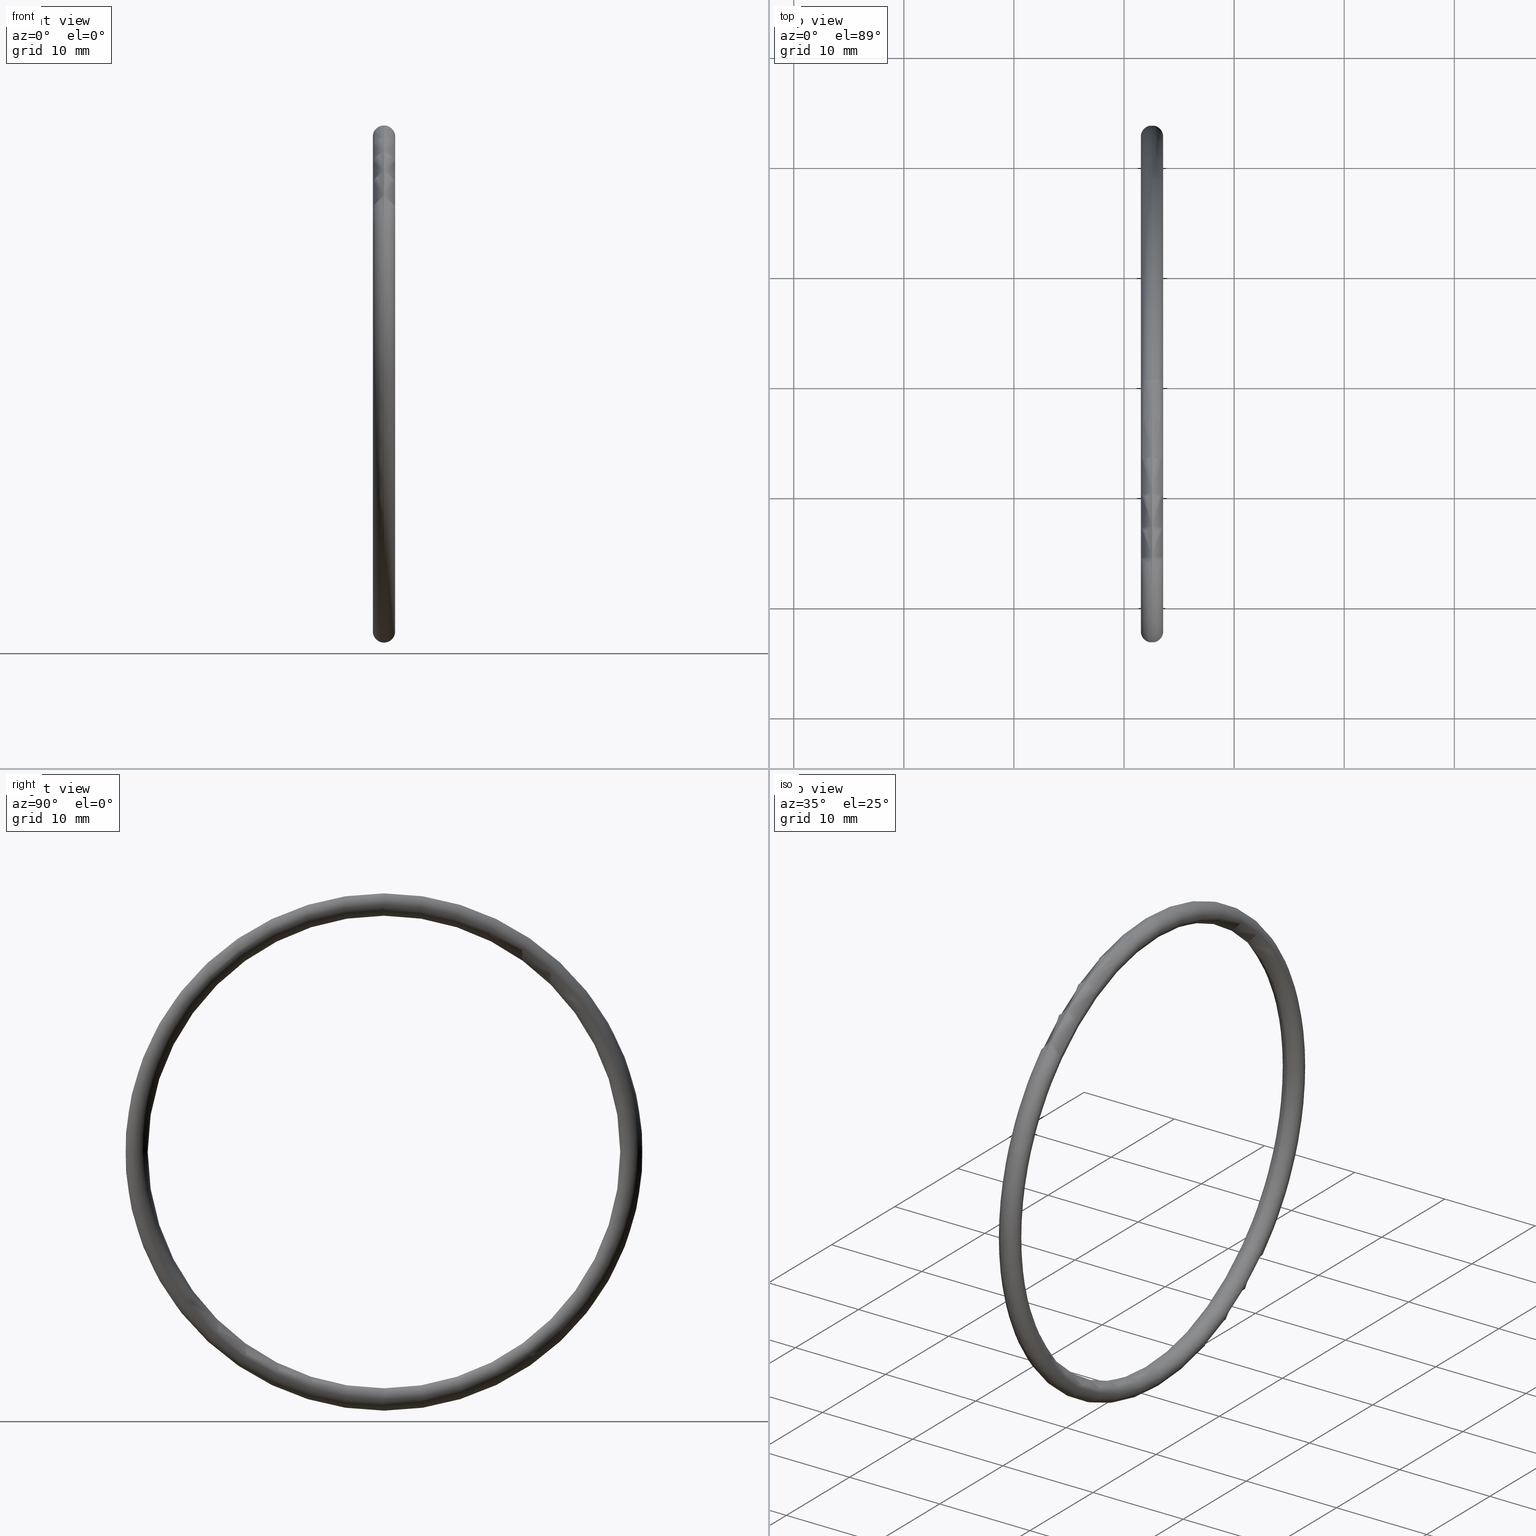
[diagram: canonical four-view strip — front | top / right | iso, engineering-drawing reading convention]
A machine part, canonical four-view strip (front | top / right | iso — engineering-drawing reading convention). The complete STEP part file that produces these views, byte-faithful:
ISO-10303-21;
HEADER;
FILE_DESCRIPTION (( 'STEP AP203' ),
    '1' );
FILE_NAME ('OM-50-SI.STEP',
    '2006-03-03T08:04:51',
    ( 'bay06' ),
    ( '' ),
    'SwSTEP 2.0',
    'SolidWorks 2008',
    '' );
FILE_SCHEMA (( 'CONFIG_CONTROL_DESIGN' ));
ENDSEC;

DATA;
#1 = PRODUCT_DEFINITION_SHAPE ( 'NONE', 'NONE',  #74 ) ;
#2 = PRODUCT_RELATED_PRODUCT_CATEGORY ( 'detail', '', ( #6 ) ) ;
#3 = CC_DESIGN_SECURITY_CLASSIFICATION ( #30, ( #49 ) ) ;
#4 = CC_DESIGN_APPROVAL ( #99, ( #30 ) ) ;
#5 = PERSON ( 'UNSPECIFIED', 'UNSPECIFIED', 'UNSPECIFIED', ('UNSPECIFIED'), ('UNSPECIFIED'), ('UNSPECIFIED') ) ;
#6 = PRODUCT ( 'OM-50-SI', 'OM-50-SI', '', ( #7 ) ) ;
#7 = MECHANICAL_CONTEXT ( 'NONE', #56, 'mechanical' ) ;
#8 = APPLICATION_PROTOCOL_DEFINITION ( 'international standard', 'config_control_design', 1994, #56 ) ;
#9 =( NAMED_UNIT ( * ) PLANE_ANGLE_UNIT ( ) SI_UNIT ( $, .RADIAN. ) );
#10 =( CONVERSION_BASED_UNIT ( 'INCH', #11 ) LENGTH_UNIT ( ) NAMED_UNIT ( #12 ) );
#11 = LENGTH_MEASURE_WITH_UNIT ( LENGTH_MEASURE( 0.02539999999999999900 ), #13 );
#12 = DIMENSIONAL_EXPONENTS ( 1.000000000000000000, 0.0000000000000000000, 0.0000000000000000000, 0.0000000000000000000, 0.0000000000000000000, 0.0000000000000000000, 0.0000000000000000000 ) ;
#13 =( LENGTH_UNIT ( ) NAMED_UNIT ( * ) SI_UNIT ( $, .METRE. ) );
#14 = DIRECTION ( 'NONE',  ( 0.0000000000000000000, 0.0000000000000000000, -1.000000000000000000 ) ) ;
#15 = DIRECTION ( 'NONE',  ( 0.0000000000000000000, -1.000000000000000000, 0.0000000000000000000 ) ) ;
#16 = AXIS2_PLACEMENT_3D ( 'NONE', #17, #15, #14 ) ;
#17 = CARTESIAN_POINT ( 'NONE',  ( 0.1000000000000001200, 0.0000000000000000000, 0.8850000000000000100 ) ) ;
#18 = CIRCLE ( 'NONE', #16, 0.03999999999999998000 ) ;
#19 = CARTESIAN_POINT ( 'NONE',  ( 0.0000000000000000000, 0.0000000000000000000, 0.0000000000000000000 ) ) ;
#20 = DIRECTION ( 'NONE',  ( 0.0000000000000000000, 0.0000000000000000000, 1.000000000000000000 ) ) ;
#21 = AXIS2_PLACEMENT_3D ( 'NONE', #22, #88, #20 ) ;
#22 = CARTESIAN_POINT ( 'NONE',  ( 0.1000000000000001200, 0.0000000000000000000, 0.0000000000000000000 ) ) ;
#23 = CIRCLE ( 'NONE', #21, 0.9249999999999999300 ) ;
#24 = CIRCLE ( 'NONE', #87, 0.03999999999999998000 ) ;
#25 = DIRECTION ( 'NONE',  ( 0.0000000000000000000, 0.0000000000000000000, 1.000000000000000000 ) ) ;
#26 = COORDINATED_UNIVERSAL_TIME_OFFSET ( 5, 30, .AHEAD. ) ;
#27 = CC_DESIGN_PERSON_AND_ORGANIZATION_ASSIGNMENT ( #29, #28, ( #30 ) ) ;
#28 = PERSON_AND_ORGANIZATION_ROLE ( 'classification_officer' ) ;
#29 = PERSON_AND_ORGANIZATION ( #5, #81 ) ;
#30 = SECURITY_CLASSIFICATION ( '', '', #31 ) ;
#31 = SECURITY_CLASSIFICATION_LEVEL ( 'unclassified' ) ;
#32 = CC_DESIGN_PERSON_AND_ORGANIZATION_ASSIGNMENT ( #34, #33, ( #49 ) ) ;
#33 = PERSON_AND_ORGANIZATION_ROLE ( 'design_supplier' ) ;
#34 = PERSON_AND_ORGANIZATION ( #5, #81 ) ;
#35 = CC_DESIGN_PERSON_AND_ORGANIZATION_ASSIGNMENT ( #37, #36, ( #49 ) ) ;
#36 = PERSON_AND_ORGANIZATION_ROLE ( 'creator' ) ;
#37 = PERSON_AND_ORGANIZATION ( #5, #81 ) ;
#38 = CC_DESIGN_APPROVAL ( #46, ( #49 ) ) ;
#39 = APPROVAL_DATE_TIME ( #40, #46 ) ;
#40 = DATE_AND_TIME ( #41, #42 ) ;
#41 = CALENDAR_DATE ( 2006, 3, 3 ) ;
#42 = LOCAL_TIME ( 13, 34, 51.00000000000000000, #43 ) ;
#43 = COORDINATED_UNIVERSAL_TIME_OFFSET ( 5, 30, .AHEAD. ) ;
#44 = APPROVAL_PERSON_ORGANIZATION ( #48, #46, #45 ) ;
#45 = APPROVAL_ROLE ( '' ) ;
#46 = APPROVAL ( #47, 'UNSPECIFIED' ) ;
#47 = APPROVAL_STATUS ( 'not_yet_approved' ) ;
#48 = PERSON_AND_ORGANIZATION ( #5, #81 ) ;
#49 = PRODUCT_DEFINITION_FORMATION_WITH_SPECIFIED_SOURCE ( 'ANY', '', #6, .NOT_KNOWN. ) ;
#50 = CC_DESIGN_DATE_AND_TIME_ASSIGNMENT ( #52, #51, ( #74 ) ) ;
#51 = DATE_TIME_ROLE ( 'creation_date' ) ;
#52 = DATE_AND_TIME ( #53, #54 ) ;
#53 = CALENDAR_DATE ( 2006, 3, 3 ) ;
#54 = LOCAL_TIME ( 13, 34, 51.00000000000000000, #55 ) ;
#55 = COORDINATED_UNIVERSAL_TIME_OFFSET ( 5, 30, .AHEAD. ) ;
#56 = APPLICATION_CONTEXT ( 'configuration controlled 3d designs of mechanical parts and assemblies' ) ;
#57 = SHAPE_DEFINITION_REPRESENTATION ( #1, #58 ) ;
#58 = ADVANCED_BREP_SHAPE_REPRESENTATION ( 'OM-50-SI', ( #126, #89 ), #59 ) ;
#59 =( GEOMETRIC_REPRESENTATION_CONTEXT ( 3 ) GLOBAL_UNCERTAINTY_ASSIGNED_CONTEXT ( ( #82 ) ) GLOBAL_UNIT_ASSIGNED_CONTEXT ( ( #10, #9, #83 ) ) REPRESENTATION_CONTEXT ( 'NONE', 'WORKASPACE' ) );
#60 = CC_DESIGN_PERSON_AND_ORGANIZATION_ASSIGNMENT ( #62, #61, ( #74 ) ) ;
#61 = PERSON_AND_ORGANIZATION_ROLE ( 'creator' ) ;
#62 = PERSON_AND_ORGANIZATION ( #5, #81 ) ;
#63 = CC_DESIGN_APPROVAL ( #71, ( #74 ) ) ;
#64 = APPROVAL_DATE_TIME ( #65, #71 ) ;
#65 = DATE_AND_TIME ( #66, #67 ) ;
#66 = CALENDAR_DATE ( 2006, 3, 3 ) ;
#67 = LOCAL_TIME ( 13, 34, 51.00000000000000000, #68 ) ;
#68 = COORDINATED_UNIVERSAL_TIME_OFFSET ( 5, 30, .AHEAD. ) ;
#69 = APPROVAL_PERSON_ORGANIZATION ( #73, #71, #70 ) ;
#70 = APPROVAL_ROLE ( '' ) ;
#71 = APPROVAL ( #72, 'UNSPECIFIED' ) ;
#72 = APPROVAL_STATUS ( 'not_yet_approved' ) ;
#73 = PERSON_AND_ORGANIZATION ( #5, #81 ) ;
#74 = PRODUCT_DEFINITION ( 'UNKNOWN', '', #49, #75 ) ;
#75 = DESIGN_CONTEXT ( 'detailed design', #77, 'design' ) ;
#76 = APPLICATION_PROTOCOL_DEFINITION ( 'international standard', 'config_control_design', 1994, #77 ) ;
#77 = APPLICATION_CONTEXT ( 'configuration controlled 3d designs of mechanical parts and assemblies' ) ;
#78 = CC_DESIGN_PERSON_AND_ORGANIZATION_ASSIGNMENT ( #80, #79, ( #6 ) ) ;
#79 = PERSON_AND_ORGANIZATION_ROLE ( 'design_owner' ) ;
#80 = PERSON_AND_ORGANIZATION ( #5, #81 ) ;
#81 = ORGANIZATION ( 'UNSPECIFIED', 'UNSPECIFIED', '' ) ;
#82 = UNCERTAINTY_MEASURE_WITH_UNIT (LENGTH_MEASURE( 1.000000000000000100E-005 ), #10, 'distance_accuracy_value', 'NONE');
#83 =( NAMED_UNIT ( * ) SI_UNIT ( $, .STERADIAN. ) SOLID_ANGLE_UNIT ( ) );
#84 = DIRECTION ( 'NONE',  ( 0.0000000000000000000, 0.0000000000000000000, -1.000000000000000000 ) ) ;
#85 = DIRECTION ( 'NONE',  ( 0.0000000000000000000, -1.000000000000000000, 0.0000000000000000000 ) ) ;
#86 = CARTESIAN_POINT ( 'NONE',  ( 0.1000000000000001200, 0.0000000000000000000, 0.8850000000000000100 ) ) ;
#87 = AXIS2_PLACEMENT_3D ( 'NONE', #86, #85, #84 ) ;
#88 = DIRECTION ( 'NONE',  ( -1.000000000000000000, -0.0000000000000000000, -0.0000000000000000000 ) ) ;
#89 = AXIS2_PLACEMENT_3D ( 'NONE', #19, #91, #90 ) ;
#90 = DIRECTION ( 'NONE',  ( 1.000000000000000000, 0.0000000000000000000, 0.0000000000000000000 ) ) ;
#91 = DIRECTION ( 'NONE',  ( 0.0000000000000000000, 0.0000000000000000000, 1.000000000000000000 ) ) ;
#92 = APPROVAL_DATE_TIME ( #93, #99 ) ;
#93 = DATE_AND_TIME ( #94, #95 ) ;
#94 = CALENDAR_DATE ( 2006, 3, 3 ) ;
#95 = LOCAL_TIME ( 13, 34, 51.00000000000000000, #96 ) ;
#96 = COORDINATED_UNIVERSAL_TIME_OFFSET ( 5, 30, .AHEAD. ) ;
#97 = APPROVAL_PERSON_ORGANIZATION ( #101, #99, #98 ) ;
#98 = APPROVAL_ROLE ( '' ) ;
#99 = APPROVAL ( #100, 'UNSPECIFIED' ) ;
#100 = APPROVAL_STATUS ( 'not_yet_approved' ) ;
#101 = PERSON_AND_ORGANIZATION ( #5, #81 ) ;
#102 = CC_DESIGN_DATE_AND_TIME_ASSIGNMENT ( #104, #103, ( #30 ) ) ;
#103 = DATE_TIME_ROLE ( 'classification_date' ) ;
#104 = DATE_AND_TIME ( #105, #106 ) ;
#105 = CALENDAR_DATE ( 2006, 3, 3 ) ;
#106 = LOCAL_TIME ( 13, 34, 51.00000000000000000, #26 ) ;
#107 = DIRECTION ( 'NONE',  ( -1.000000000000000000, -0.0000000000000000000, -0.0000000000000000000 ) ) ;
#108 = AXIS2_PLACEMENT_3D ( 'NONE', #111, #107, #25 ) ;
#109 = CARTESIAN_POINT ( 'NONE',  ( 0.1000000000000001200, 0.0000000000000000000, 0.8449999999999999700 ) ) ;
#110 = FACE_OUTER_BOUND ( 'NONE', #138, .T. ) ;
#111 = CARTESIAN_POINT ( 'NONE',  ( 0.1000000000000001200, 0.0000000000000000000, 0.0000000000000000000 ) ) ;
#112 = TOROIDAL_SURFACE ( 'NONE', #108, 0.8850000000000000100, 0.03999999999999997300 ) ;
#113 = EDGE_LOOP ( 'NONE', ( #143, #154, #142, #153 ) ) ;
#114 = ADVANCED_FACE ( 'NONE', ( #160 ), #163, .T. ) ;
#115 = EDGE_LOOP ( 'NONE', ( #116, #117, #118, #119 ) ) ;
#116 = ORIENTED_EDGE ( 'NONE', *, *, #157, .F. ) ;
#117 = ORIENTED_EDGE ( 'NONE', *, *, #147, .F. ) ;
#118 = ORIENTED_EDGE ( 'NONE', *, *, #149, .T. ) ;
#119 = ORIENTED_EDGE ( 'NONE', *, *, #155, .T. ) ;
#120 = CLOSED_SHELL ( 'NONE', ( #124, #152, #145, #114 ) ) ;
#121 = ORIENTED_EDGE ( 'NONE', *, *, #122, .F. ) ;
#122 = EDGE_CURVE ( 'NONE', #140, #146, #180, .T. ) ;
#123 = EDGE_LOOP ( 'NONE', ( #121, #137, #151, #135 ) ) ;
#124 = ADVANCED_FACE ( 'NONE', ( #166 ), #183, .T. ) ;
#125 = AXIS2_PLACEMENT_3D ( 'NONE', #127, #128, #132 ) ;
#126 = MANIFOLD_SOLID_BREP ( 'NONE', #120 ) ;
#127 = CARTESIAN_POINT ( 'NONE',  ( 0.1000000000000001200, 0.0000000000000000000, 0.0000000000000000000 ) ) ;
#128 = DIRECTION ( 'NONE',  ( -1.000000000000000000, -0.0000000000000000000, -0.0000000000000000000 ) ) ;
#129 = DIRECTION ( 'NONE',  ( -1.000000000000000000, -0.0000000000000000000, -0.0000000000000000000 ) ) ;
#130 = AXIS2_PLACEMENT_3D ( 'NONE', #134, #129, #131 ) ;
#131 = DIRECTION ( 'NONE',  ( 0.0000000000000000000, 0.0000000000000000000, 1.000000000000000000 ) ) ;
#132 = DIRECTION ( 'NONE',  ( 0.0000000000000000000, 0.0000000000000000000, 1.000000000000000000 ) ) ;
#133 = DIRECTION ( 'NONE',  ( 0.0000000000000000000, 0.0000000000000000000, 1.000000000000000000 ) ) ;
#134 = CARTESIAN_POINT ( 'NONE',  ( 0.1000000000000001200, 0.0000000000000000000, 0.0000000000000000000 ) ) ;
#135 = ORIENTED_EDGE ( 'NONE', *, *, #149, .F. ) ;
#136 = EDGE_CURVE ( 'NONE', #148, #140, #176, .T. ) ;
#137 = ORIENTED_EDGE ( 'NONE', *, *, #157, .T. ) ;
#138 = EDGE_LOOP ( 'NONE', ( #159, #156, #141, #139 ) ) ;
#139 = ORIENTED_EDGE ( 'NONE', *, *, #144, .F. ) ;
#140 = VERTEX_POINT ( 'NONE', #171 ) ;
#141 = ORIENTED_EDGE ( 'NONE', *, *, #122, .T. ) ;
#142 = ORIENTED_EDGE ( 'NONE', *, *, #144, .T. ) ;
#143 = ORIENTED_EDGE ( 'NONE', *, *, #136, .F. ) ;
#144 = EDGE_CURVE ( 'NONE', #150, #146, #170, .T. ) ;
#145 = ADVANCED_FACE ( 'NONE', ( #185 ), #184, .T. ) ;
#146 = VERTEX_POINT ( 'NONE', #186 ) ;
#147 = EDGE_CURVE ( 'NONE', #146, #140, #196, .T. ) ;
#148 = VERTEX_POINT ( 'NONE', #191 ) ;
#149 = EDGE_CURVE ( 'NONE', #146, #150, #190, .T. ) ;
#150 = VERTEX_POINT ( 'NONE', #109 ) ;
#151 = ORIENTED_EDGE ( 'NONE', *, *, #158, .T. ) ;
#152 = ADVANCED_FACE ( 'NONE', ( #110 ), #112, .T. ) ;
#153 = ORIENTED_EDGE ( 'NONE', *, *, #147, .T. ) ;
#154 = ORIENTED_EDGE ( 'NONE', *, *, #155, .F. ) ;
#155 = EDGE_CURVE ( 'NONE', #150, #148, #24, .T. ) ;
#156 = ORIENTED_EDGE ( 'NONE', *, *, #136, .T. ) ;
#157 = EDGE_CURVE ( 'NONE', #140, #148, #23, .T. ) ;
#158 = EDGE_CURVE ( 'NONE', #148, #150, #18, .T. ) ;
#159 = ORIENTED_EDGE ( 'NONE', *, *, #158, .F. ) ;
#160 = FACE_OUTER_BOUND ( 'NONE', #115, .T. ) ;
#161 = CARTESIAN_POINT ( 'NONE',  ( 0.1000000000000001200, 0.0000000000000000000, 0.0000000000000000000 ) ) ;
#162 = AXIS2_PLACEMENT_3D ( 'NONE', #161, #165, #164 ) ;
#163 = TOROIDAL_SURFACE ( 'NONE', #162, 0.8850000000000000100, 0.03999999999999997300 ) ;
#164 = DIRECTION ( 'NONE',  ( 0.0000000000000000000, 0.0000000000000000000, 1.000000000000000000 ) ) ;
#165 = DIRECTION ( 'NONE',  ( -1.000000000000000000, -0.0000000000000000000, -0.0000000000000000000 ) ) ;
#166 = FACE_OUTER_BOUND ( 'NONE', #123, .T. ) ;
#167 = DIRECTION ( 'NONE',  ( -1.000000000000000000, -0.0000000000000000000, -0.0000000000000000000 ) ) ;
#168 = DIRECTION ( 'NONE',  ( 0.0000000000000000000, -1.224646799147354900E-016, 1.000000000000000000 ) ) ;
#169 = CARTESIAN_POINT ( 'NONE',  ( 0.1000000000000001200, 0.0000000000000000000, 0.0000000000000000000 ) ) ;
#170 = CIRCLE ( 'NONE', #125, 0.8449999999999999700 ) ;
#171 = CARTESIAN_POINT ( 'NONE',  ( 0.1000000000000001200, 1.132798289211301800E-016, -0.9249999999999999300 ) ) ;
#172 = DIRECTION ( 'NONE',  ( 0.0000000000000000000, 0.0000000000000000000, 1.000000000000000000 ) ) ;
#173 = DIRECTION ( 'NONE',  ( -1.000000000000000000, -0.0000000000000000000, -0.0000000000000000000 ) ) ;
#174 = CARTESIAN_POINT ( 'NONE',  ( 0.1000000000000001200, 0.0000000000000000000, 0.0000000000000000000 ) ) ;
#175 = AXIS2_PLACEMENT_3D ( 'NONE', #174, #173, #172 ) ;
#176 = CIRCLE ( 'NONE', #175, 0.9249999999999999300 ) ;
#177 = DIRECTION ( 'NONE',  ( -0.0000000000000000000, 1.000000000000000000, 1.224646799147353200E-016 ) ) ;
#178 = CARTESIAN_POINT ( 'NONE',  ( 0.1000000000000001200, 1.083812417245407700E-016, -0.8850000000000000100 ) ) ;
#179 = AXIS2_PLACEMENT_3D ( 'NONE', #178, #177, #168 ) ;
#180 = CIRCLE ( 'NONE', #179, 0.03999999999999998000 ) ;
#181 = DIRECTION ( 'NONE',  ( 0.0000000000000000000, 0.0000000000000000000, 1.000000000000000000 ) ) ;
#182 = AXIS2_PLACEMENT_3D ( 'NONE', #169, #167, #181 ) ;
#183 = TOROIDAL_SURFACE ( 'NONE', #182, 0.8850000000000000100, 0.03999999999999997300 ) ;
#184 = TOROIDAL_SURFACE ( 'NONE', #130, 0.8850000000000000100, 0.03999999999999997300 ) ;
#185 = FACE_OUTER_BOUND ( 'NONE', #113, .T. ) ;
#186 = CARTESIAN_POINT ( 'NONE',  ( 0.1000000000000001200, 1.034826545279513500E-016, -0.8449999999999999700 ) ) ;
#187 = DIRECTION ( 'NONE',  ( -1.000000000000000000, -0.0000000000000000000, -0.0000000000000000000 ) ) ;
#188 = CARTESIAN_POINT ( 'NONE',  ( 0.1000000000000001200, 0.0000000000000000000, 0.0000000000000000000 ) ) ;
#189 = AXIS2_PLACEMENT_3D ( 'NONE', #188, #187, #133 ) ;
#190 = CIRCLE ( 'NONE', #189, 0.8449999999999999700 ) ;
#191 = CARTESIAN_POINT ( 'NONE',  ( 0.1000000000000001200, 0.0000000000000000000, 0.9249999999999999300 ) ) ;
#192 = DIRECTION ( 'NONE',  ( 0.0000000000000000000, -1.224646799147354900E-016, 1.000000000000000000 ) ) ;
#193 = DIRECTION ( 'NONE',  ( -0.0000000000000000000, 1.000000000000000000, 1.224646799147353200E-016 ) ) ;
#194 = CARTESIAN_POINT ( 'NONE',  ( 0.1000000000000001200, 1.083812417245407700E-016, -0.8850000000000000100 ) ) ;
#195 = AXIS2_PLACEMENT_3D ( 'NONE', #194, #193, #192 ) ;
#196 = CIRCLE ( 'NONE', #195, 0.03999999999999998000 ) ;
ENDSEC;
END-ISO-10303-21;
